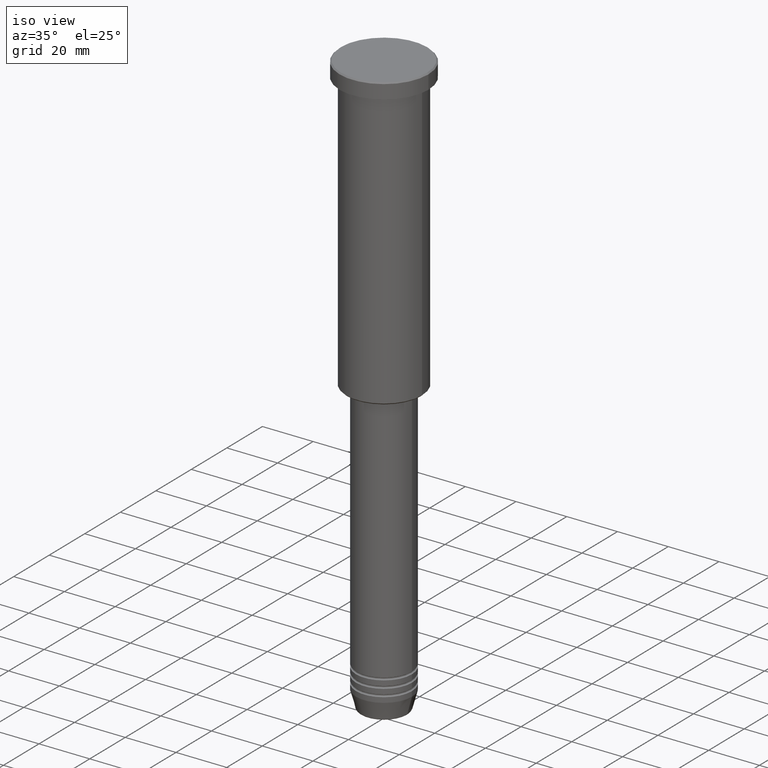
[diagram: clean part render]
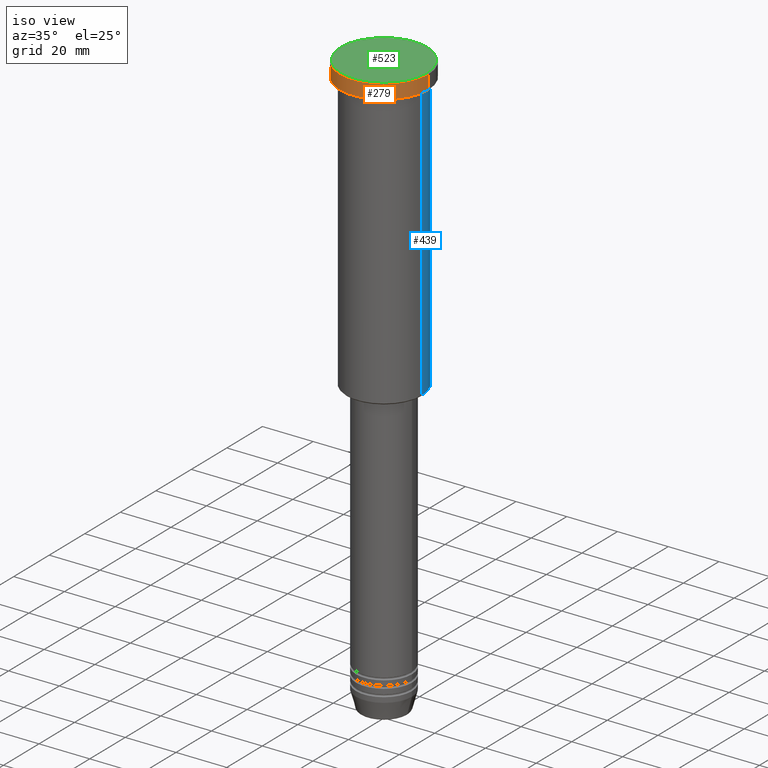
[diagram: same view with three faces highlighted in distinct colors, each labeled with its STEP entity id]
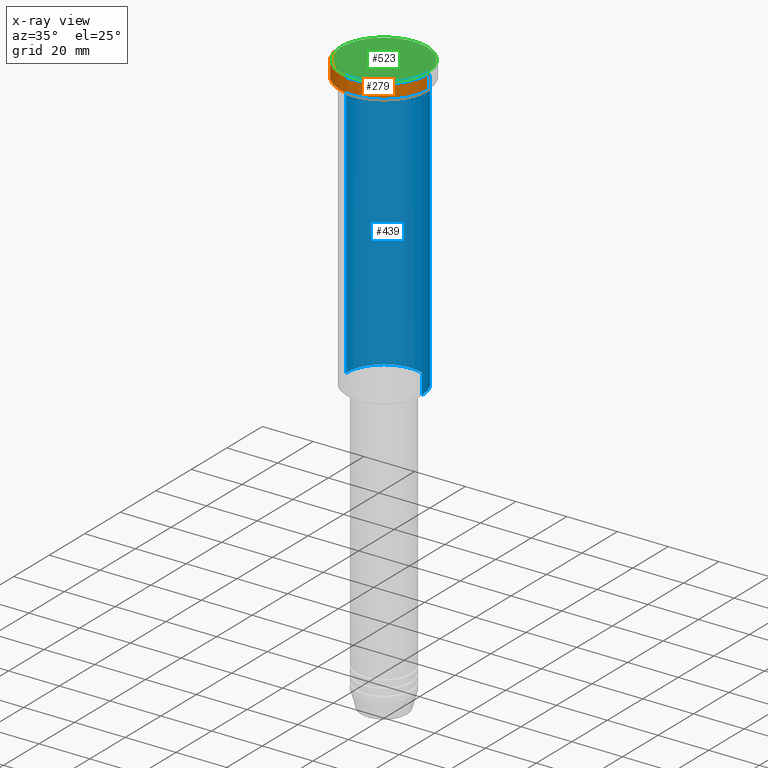
[diagram: x-ray of the same camera — body ghosted, the three highlighted faces saturated]
A machine part, iso view with three faces highlighted in distinct colors.
The next image is the same camera in x-ray (body ghosted, the three faces saturated) — at least one of them is partly hidden behind the body in this view.
Their STEP definitions:

[orange] entity #279 — the highlighted cylindrical surface (partial cylindrical patch) has radius 17.5 mm, axis along (-0, -0, 1).
#2 = VERTEX_POINT ( 'NONE', #823 ) ;
#10 = CYLINDRICAL_SURFACE ( 'NONE', #120, 17.50000000000000000 ) ;
#14 = DIRECTION ( 'NONE',  ( -0.000000000000000000, -0.000000000000000000, 1.000000000000000000 ) ) ;
#16 = EDGE_CURVE ( 'NONE', #644, #2, #309, .T. ) ;
#17 = DIRECTION ( 'NONE',  ( 1.000000000000000000, 0.000000000000000000, 0.000000000000000000 ) ) ;
#41 = EDGE_LOOP ( 'NONE', ( #462, #502, #1164, #881 ) ) ;
#55 = CARTESIAN_POINT ( 'NONE',  ( 0.000000000000000000, 0.000000000000000000, -5.999999999999995559 ) ) ;
#117 = CARTESIAN_POINT ( 'NONE',  ( -17.50000000000000000, 2.143131898507868248E-15, 0.000000000000000000 ) ) ;
#120 = AXIS2_PLACEMENT_3D ( 'NONE', #560, #473, #17 ) ;
#125 = VERTEX_POINT ( 'NONE', #1168 ) ;
#178 = CIRCLE ( 'NONE', #372, 17.50000000000000000 ) ;
#229 = VERTEX_POINT ( 'NONE', #482 ) ;
#279 = ADVANCED_FACE ( 'NONE', ( #466 ), #10, .T. ) ;
#309 = CIRCLE ( 'NONE', #619, 17.50000000000000000 ) ;
#338 = DIRECTION ( 'NONE',  ( 1.000000000000000000, 0.000000000000000000, 0.000000000000000000 ) ) ;
#372 = AXIS2_PLACEMENT_3D ( 'NONE', #55, #977, #338 ) ;
#462 = ORIENTED_EDGE ( 'NONE', *, *, #1066, .F. ) ;
#466 = FACE_OUTER_BOUND ( 'NONE', #41, .T. ) ;
#469 = LINE ( 'NONE', #913, #1058 ) ;
#473 = DIRECTION ( 'NONE',  ( -0.000000000000000000, -0.000000000000000000, 1.000000000000000000 ) ) ;
#482 = CARTESIAN_POINT ( 'NONE',  ( 17.50000000000000000, 0.000000000000000000, -5.999999999999995559 ) ) ;
#502 = ORIENTED_EDGE ( 'NONE', *, *, #846, .T. ) ;
#543 = DIRECTION ( 'NONE',  ( 0.000000000000000000, 0.000000000000000000, -1.000000000000000000 ) ) ;
#551 = CARTESIAN_POINT ( 'NONE',  ( 0.000000000000000000, 0.000000000000000000, -0.5000000000000559552 ) ) ;
#560 = CARTESIAN_POINT ( 'NONE',  ( 0.000000000000000000, 0.000000000000000000, 0.000000000000000000 ) ) ;
#571 = CARTESIAN_POINT ( 'NONE',  ( 17.50000000000000000, 0.000000000000000000, -0.5000000000000559552 ) ) ;
#579 = LINE ( 'NONE', #117, #1175 ) ;
#619 = AXIS2_PLACEMENT_3D ( 'NONE', #551, #543, #1179 ) ;
#644 = VERTEX_POINT ( 'NONE', #571 ) ;
#823 = CARTESIAN_POINT ( 'NONE',  ( -17.50000000000000000, 2.143131898507868248E-15, -0.5000000000000559552 ) ) ;
#846 = EDGE_CURVE ( 'NONE', #125, #229, #178, .T. ) ;
#881 = ORIENTED_EDGE ( 'NONE', *, *, #16, .T. ) ;
#913 = CARTESIAN_POINT ( 'NONE',  ( 17.50000000000000000, 0.000000000000000000, 0.000000000000000000 ) ) ;
#930 = EDGE_CURVE ( 'NONE', #229, #644, #469, .T. ) ;
#977 = DIRECTION ( 'NONE',  ( -0.000000000000000000, -0.000000000000000000, 1.000000000000000000 ) ) ;
#1013 = DIRECTION ( 'NONE',  ( -0.000000000000000000, -0.000000000000000000, 1.000000000000000000 ) ) ;
#1058 = VECTOR ( 'NONE', #14, 1000.000000000000000 ) ;
#1066 = EDGE_CURVE ( 'NONE', #125, #2, #579, .T. ) ;
#1164 = ORIENTED_EDGE ( 'NONE', *, *, #930, .T. ) ;
#1168 = CARTESIAN_POINT ( 'NONE',  ( -17.50000000000000000, 2.143131898507868248E-15, -5.999999999999995559 ) ) ;
#1175 = VECTOR ( 'NONE', #1013, 1000.000000000000000 ) ;
#1179 = DIRECTION ( 'NONE',  ( 1.000000000000000000, 0.000000000000000000, 0.000000000000000000 ) ) ;

[blue] entity #439 — the highlighted cylindrical surface (partial cylindrical patch) has radius 15 mm, axis along (-0, -0, 1).
#4 = EDGE_CURVE ( 'NONE', #1116, #325, #329, .T. ) ;
#28 = AXIS2_PLACEMENT_3D ( 'NONE', #1154, #1077, #559 ) ;
#91 = CARTESIAN_POINT ( 'NONE',  ( -15.00000000000000000, 1.836970198721029589E-15, 0.000000000000000000 ) ) ;
#109 = EDGE_CURVE ( 'NONE', #1086, #325, #1064, .T. ) ;
#113 = DIRECTION ( 'NONE',  ( -0.000000000000000000, -0.000000000000000000, 1.000000000000000000 ) ) ;
#158 = EDGE_LOOP ( 'NONE', ( #241, #300, #514, #961 ) ) ;
#194 = FACE_OUTER_BOUND ( 'NONE', #158, .T. ) ;
#218 = CARTESIAN_POINT ( 'NONE',  ( -15.00000000000000000, 1.836970198721029589E-15, -115.4999999999999432 ) ) ;
#241 = ORIENTED_EDGE ( 'NONE', *, *, #671, .T. ) ;
#247 = DIRECTION ( 'NONE',  ( -0.000000000000000000, -0.000000000000000000, 1.000000000000000000 ) ) ;
#300 = ORIENTED_EDGE ( 'NONE', *, *, #109, .T. ) ;
#318 = CARTESIAN_POINT ( 'NONE',  ( 15.00000000000000000, 0.000000000000000000, -115.4999999999999432 ) ) ;
#325 = VERTEX_POINT ( 'NONE', #1139 ) ;
#329 = CIRCLE ( 'NONE', #485, 15.00000000000000000 ) ;
#439 = ADVANCED_FACE ( 'NONE', ( #194 ), #629, .T. ) ;
#481 = DIRECTION ( 'NONE',  ( -1.000000000000000000, 0.000000000000000000, 0.000000000000000000 ) ) ;
#485 = AXIS2_PLACEMENT_3D ( 'NONE', #630, #980, #731 ) ;
#500 = DIRECTION ( 'NONE',  ( -0.000000000000000000, -0.000000000000000000, 1.000000000000000000 ) ) ;
#514 = ORIENTED_EDGE ( 'NONE', *, *, #4, .F. ) ;
#530 = CIRCLE ( 'NONE', #1126, 15.00000000000000000 ) ;
#559 = DIRECTION ( 'NONE',  ( 1.000000000000000000, 0.000000000000000000, 0.000000000000000000 ) ) ;
#573 = VERTEX_POINT ( 'NONE', #318 ) ;
#575 = CARTESIAN_POINT ( 'NONE',  ( 15.00000000000000000, 0.000000000000000000, 0.000000000000000000 ) ) ;
#584 = EDGE_CURVE ( 'NONE', #573, #1116, #764, .T. ) ;
#629 = CYLINDRICAL_SURFACE ( 'NONE', #28, 15.00000000000000000 ) ;
#630 = CARTESIAN_POINT ( 'NONE',  ( 0.000000000000000000, 0.000000000000000000, -6.999999999999995559 ) ) ;
#671 = EDGE_CURVE ( 'NONE', #573, #1086, #530, .T. ) ;
#731 = DIRECTION ( 'NONE',  ( 1.000000000000000000, 0.000000000000000000, 0.000000000000000000 ) ) ;
#764 = LINE ( 'NONE', #575, #1018 ) ;
#850 = CARTESIAN_POINT ( 'NONE',  ( 15.00000000000000000, 0.000000000000000000, -6.999999999999995559 ) ) ;
#961 = ORIENTED_EDGE ( 'NONE', *, *, #584, .F. ) ;
#980 = DIRECTION ( 'NONE',  ( -0.000000000000000000, -0.000000000000000000, 1.000000000000000000 ) ) ;
#1018 = VECTOR ( 'NONE', #500, 1000.000000000000000 ) ;
#1032 = CARTESIAN_POINT ( 'NONE',  ( 0.000000000000000000, 0.000000000000000000, -115.4999999999999432 ) ) ;
#1064 = LINE ( 'NONE', #91, #1107 ) ;
#1077 = DIRECTION ( 'NONE',  ( -0.000000000000000000, -0.000000000000000000, 1.000000000000000000 ) ) ;
#1086 = VERTEX_POINT ( 'NONE', #218 ) ;
#1107 = VECTOR ( 'NONE', #247, 1000.000000000000000 ) ;
#1116 = VERTEX_POINT ( 'NONE', #850 ) ;
#1126 = AXIS2_PLACEMENT_3D ( 'NONE', #1032, #113, #481 ) ;
#1139 = CARTESIAN_POINT ( 'NONE',  ( -15.00000000000000000, 1.836970198721029589E-15, -6.999999999999995559 ) ) ;
#1154 = CARTESIAN_POINT ( 'NONE',  ( 0.000000000000000000, 0.000000000000000000, 0.000000000000000000 ) ) ;

[green] entity #523 — the highlighted planar face has unit normal (0, -0, 1).
#35 = EDGE_CURVE ( 'NONE', #993, #805, #408, .T. ) ;
#37 = CARTESIAN_POINT ( 'NONE',  ( 0.000000000000000000, 0.000000000000000000, 0.000000000000000000 ) ) ;
#89 = ORIENTED_EDGE ( 'NONE', *, *, #698, .T. ) ;
#254 = CIRCLE ( 'NONE', #923, 16.99999999999998579 ) ;
#277 = CARTESIAN_POINT ( 'NONE',  ( 0.000000000000000000, 0.000000000000000000, 0.000000000000000000 ) ) ;
#361 = EDGE_LOOP ( 'NONE', ( #540, #89 ) ) ;
#364 = CARTESIAN_POINT ( 'NONE',  ( 0.000000000000000000, 0.000000000000000000, 0.000000000000000000 ) ) ;
#367 = CARTESIAN_POINT ( 'NONE',  ( -16.99999999999998579, 0.000000000000000000, 0.000000000000000000 ) ) ;
#377 = DIRECTION ( 'NONE',  ( 0.000000000000000000, -0.000000000000000000, 1.000000000000000000 ) ) ;
#408 = CIRCLE ( 'NONE', #1072, 16.99999999999998579 ) ;
#457 = DIRECTION ( 'NONE',  ( 1.000000000000000000, 0.000000000000000000, 0.000000000000000000 ) ) ;
#523 = ADVANCED_FACE ( 'NONE', ( #554 ), #614, .T. ) ;
#540 = ORIENTED_EDGE ( 'NONE', *, *, #35, .T. ) ;
#554 = FACE_OUTER_BOUND ( 'NONE', #361, .T. ) ;
#580 = DIRECTION ( 'NONE',  ( -0.000000000000000000, -0.000000000000000000, 1.000000000000000000 ) ) ;
#614 = PLANE ( 'NONE',  #736 ) ;
#698 = EDGE_CURVE ( 'NONE', #805, #993, #254, .T. ) ;
#736 = AXIS2_PLACEMENT_3D ( 'NONE', #277, #377, #978 ) ;
#758 = DIRECTION ( 'NONE',  ( 1.000000000000000000, 0.000000000000000000, 0.000000000000000000 ) ) ;
#780 = CARTESIAN_POINT ( 'NONE',  ( 16.99999999999998579, 2.112515728529183278E-15, 0.000000000000000000 ) ) ;
#805 = VERTEX_POINT ( 'NONE', #780 ) ;
#923 = AXIS2_PLACEMENT_3D ( 'NONE', #37, #580, #758 ) ;
#978 = DIRECTION ( 'NONE',  ( 1.000000000000000000, 0.000000000000000000, 0.000000000000000000 ) ) ;
#993 = VERTEX_POINT ( 'NONE', #367 ) ;
#1071 = DIRECTION ( 'NONE',  ( -0.000000000000000000, -0.000000000000000000, 1.000000000000000000 ) ) ;
#1072 = AXIS2_PLACEMENT_3D ( 'NONE', #364, #1071, #457 ) ;